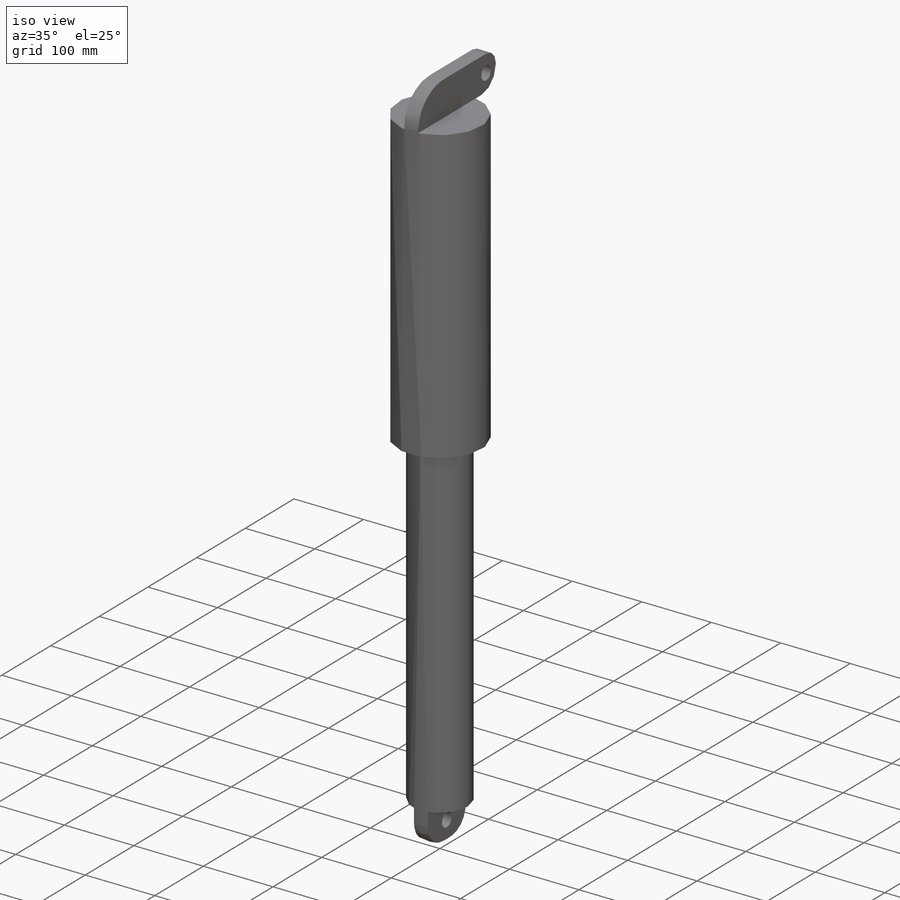
[diagram: iso view]
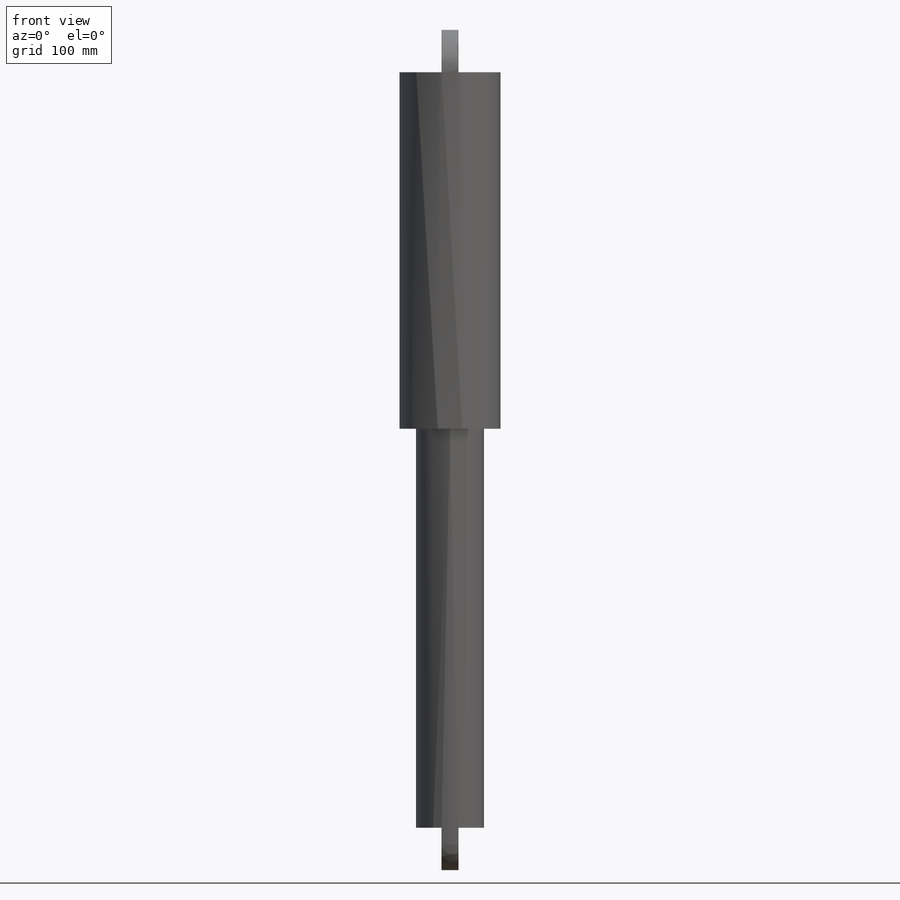
[diagram: front view]
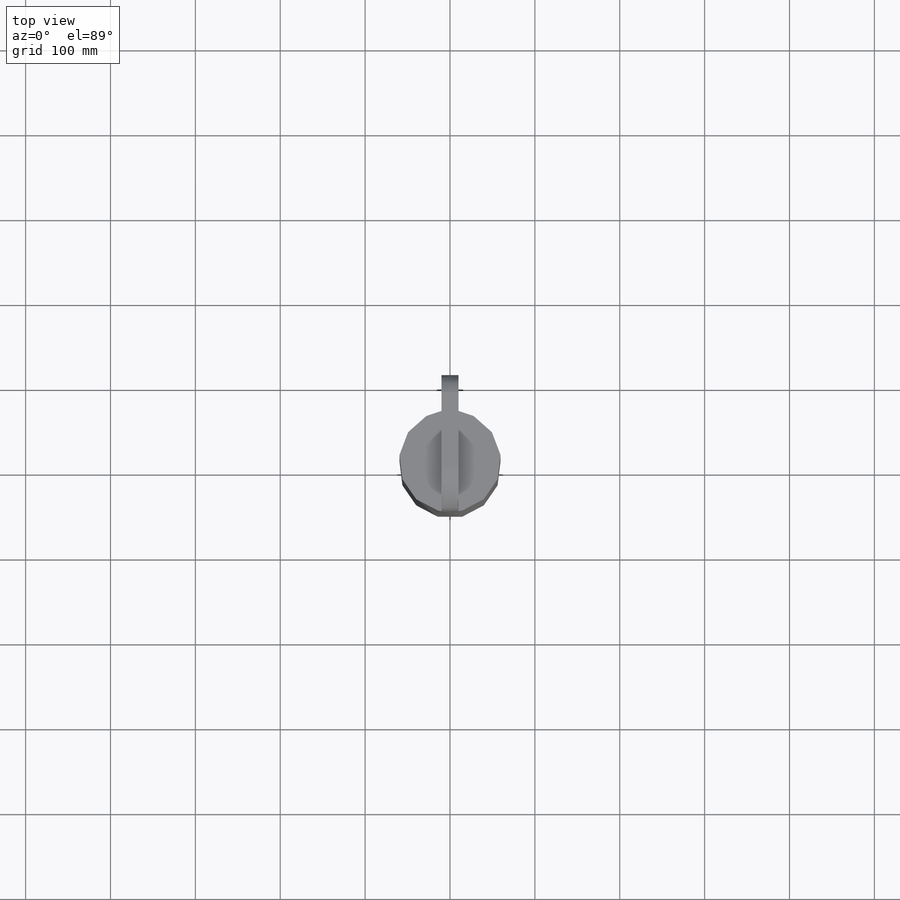
[diagram: top view]
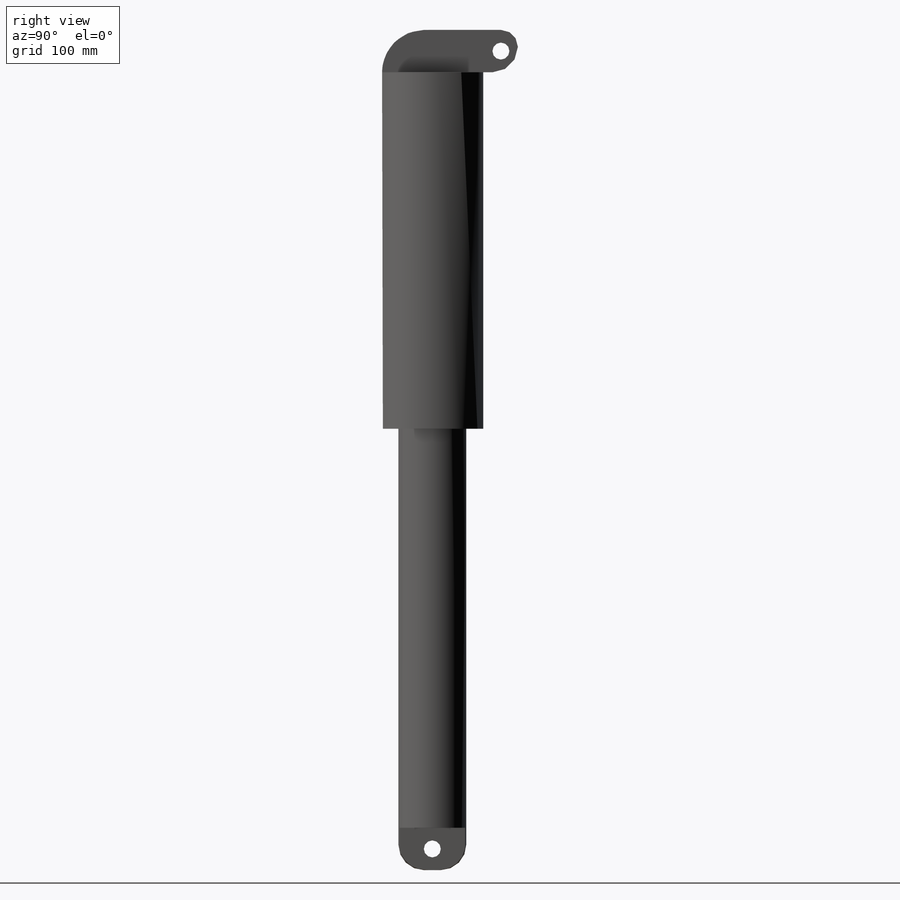
[diagram: right view]
SOLIDWORKS PART (.sldprt)
format: sldprt  version: not decoded by parser v0  size: 367,104 bytes
history: native  units: mm
features: sketch x9, extrude x7, fillet x4, cut_extrude x2, material x1 (+14 scaffold rows collapsed)
feature tree (37):
  scaffold x14  (default folders/planes/origin — collapsed)
  material  "6061 Alloy"
  sketch  "Sketch1"  dims[D1=110.0mm D2=5.0mm]
  extrude  "Extrude1"  Depth=400mm
  sketch  "Sketch2"
  extrude  "Extrude2"  Depth=10mm
  sketch  "Sketch3"
  extrude  "Extrude3"  Depth=10mm
  sketch  "Sketch4"  dims[D1=80.0mm D2=5.0mm]
  extrude  "Extrude4"  Depth=450mm
  sketch  "Sketch5"
  extrude  "Extrude5"  Depth=20mm
  sketch  "Sketch6"  dims[D3=50.0mm D1=10.0mm D2=10.0mm]
  extrude  "Extrude6"  Depth=50mm
  sketch  "Sketch7"  dims[D1=20.0mm D2=25.0mm]
  cut_extrude  "Cut-Extrude2"  [1 undecoded]
  sketch  "Sketch8"  dims[c1.D3=120.0mm c1.D1=20.0mm c1.D2=10.0mm c2.D3=160.0mm]
  extrude  "Extrude7"  Depth=50mm
  fillet  "Fillet1"  Radius=50mm
  fillet  "Fillet2"  Radius=30mm
  fillet  "Fillet3"  Radius=20mm
  sketch  "Sketch9"  dims[D1=20.0mm D2=140.0mm D3=25.0mm]
  cut_extrude  "Cut-Extrude3"  Depth=51mm
  fillet  "Fillet4"  Radius=30mm
decode coverage: 18 of 22 modeling features carry decoded parameters
note: 1 parameter value undecoded
note: suppression state not decoded; provenance and decode notes live in map.json
